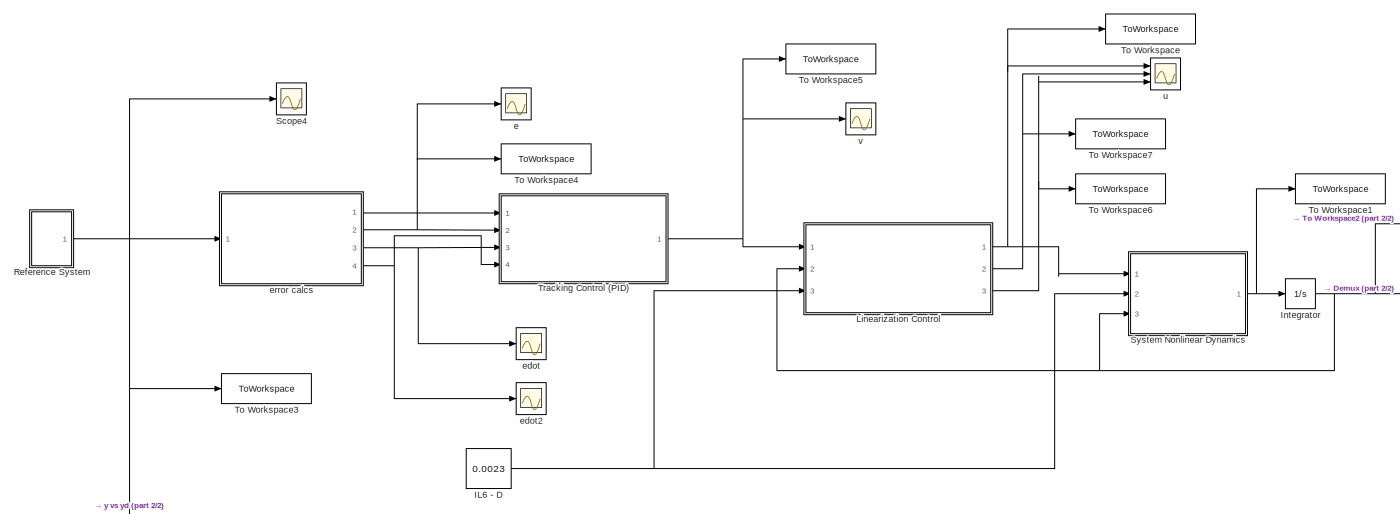
[diagram: root canvas - part 1/2, most of the canvas]
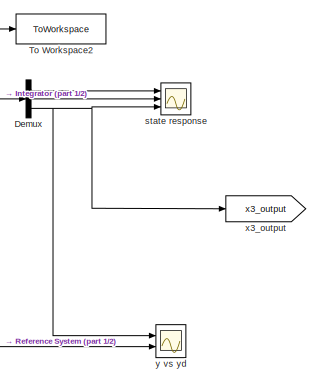
[diagram: root canvas - part 2/2, bottom right region]
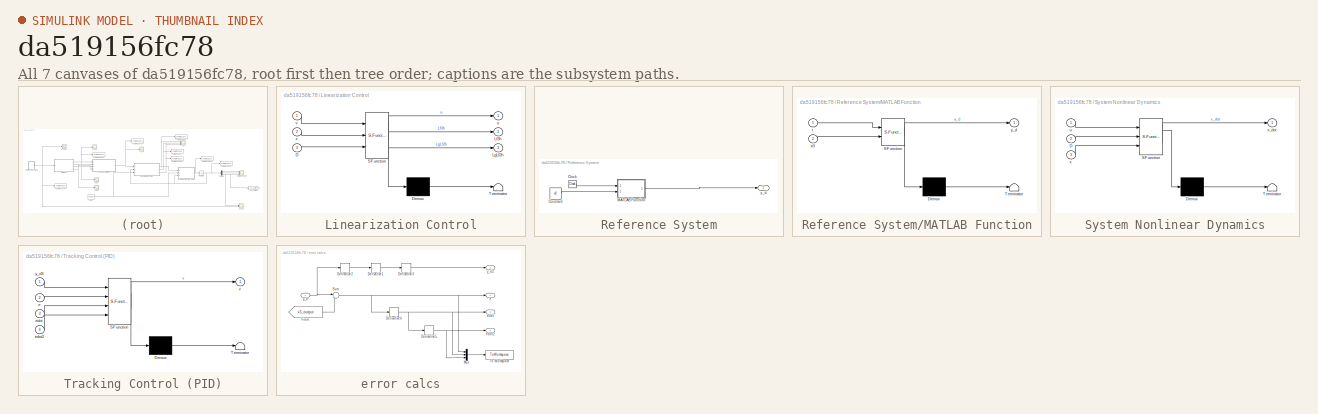
[diagram: thumbnail index - all 7 canvases of the model, root first then tree order]
MODEL slx_da519156fc78
KIND model
CONFIG AbsTol = auto
CONFIG EnableMultiTasking = off
CONFIG FixedStep = 1e-7
CONFIG MaxStep = auto
CONFIG MinStep = auto
CONFIG RelTol = 1e-3
CONFIG SampleTimeConstraint = Unconstrained
CONFIG SolverName = ode1
CONFIG StartTime = 0.0
CONFIG StopTime = 0.02
BLOCK [Demux] Demux
  Outputs = 3
  Ports = [1, 3]
BLOCK [Constant] IL6 - D
  Value = 0.0023
BLOCK [Integrator] Integrator
  InitialCondition = x0
  Ports = [1, 1]
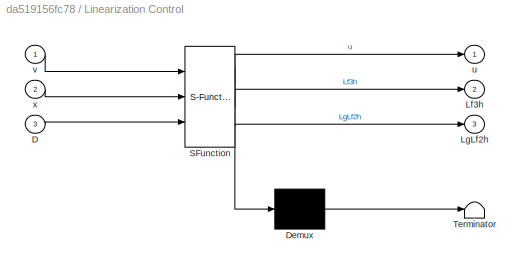
BLOCK [SubSystem] Linearization Control
  ErrorFcn = Stateflow.Translate.translate
  PermitHierarchicalResolution = ExplicitOnly
  Ports = [3, 3]
  RequestExecContextInheritance = off
  SFBlockType = MATLAB Function
  TreatAsAtomicUnit = on
BLOCK [Demux] Linearization Control/ Demux 
  Outputs = 1
  Ports = [1, 1]
BLOCK [S-Function] Linearization Control/ SFunction 
  EnableBusSupport = on
  FunctionName = sf_sfun
  PortCounts = [3 4]
  Ports = [3, 4]
  SFcnIsStateOwnerBlock = off
  SFunctionDeploymentMode = off
  Tag = Stateflow S-Function 1
BLOCK [Terminator] Linearization Control/ Terminator 
BLOCK [Inport] Linearization Control/D
  Port = 3
BLOCK [Outport] Linearization Control/Lf3h
  Port = 2
BLOCK [Outport] Linearization Control/LgLf2h
  Port = 3
BLOCK [Outport] Linearization Control/u
BLOCK [Inport] Linearization Control/v
BLOCK [Inport] Linearization Control/x
  Port = 2
BLOCK [SubSystem] Reference System
  Ports = [0, 1]
  RequestExecContextInheritance = off
BLOCK [Clock] Reference System/Clock
  DisplayTime = on
BLOCK [Constant] Reference System/Constant
  Value = x0
BLOCK [SubSystem] Reference System/MATLAB Function
  ErrorFcn = Stateflow.Translate.translate
  PermitHierarchicalResolution = ExplicitOnly
  Ports = [2, 1]
  RequestExecContextInheritance = off
  SFBlockType = MATLAB Function
  TreatAsAtomicUnit = on
BLOCK [Demux] Reference System/MATLAB Function/ Demux 
  Outputs = 1
  Ports = [1, 1]
BLOCK [S-Function] Reference System/MATLAB Function/ SFunction 
  EnableBusSupport = on
  FunctionName = sf_sfun
  PortCounts = [2 2]
  Ports = [2, 2]
  SFcnIsStateOwnerBlock = off
  SFunctionDeploymentMode = off
  Tag = Stateflow S-Function 11
BLOCK [Terminator] Reference System/MATLAB Function/ Terminator 
BLOCK [Inport] Reference System/MATLAB Function/t
BLOCK [Inport] Reference System/MATLAB Function/x0
  Port = 2
BLOCK [Outport] Reference System/MATLAB Function/y_d
BLOCK [Outport] Reference System/y_d
BLOCK [Scope] Scope4
  Floating = off
  NumInputPorts = 1
  Ports = [1]
  ScopeSpecificationString = Simulink.scopes.TimeScopeBlockCfg('CurrentConfiguration', extmgr.ConfigurationSet(extmgr.Configuration('Core','General UI',true),extmgr.Configuration('Core','Source UI',true),extmgr.Configuration('Sources','WiredSimulink',true,'DataLoggingVariableName','ScopeData4'),extmgr.Configuration('Visuals','Time Domain',true,'InputProcessing','FrameProcessing','SerializedDisplays',{struct('MinYLimReal','50....<+1501ch>
BLOCK [SubSystem] System Nonlinear Dynamics
  ErrorFcn = Stateflow.Translate.translate
  PermitHierarchicalResolution = ExplicitOnly
  Ports = [3, 1]
  RequestExecContextInheritance = off
  SFBlockType = MATLAB Function
  TreatAsAtomicUnit = on
BLOCK [Demux] System Nonlinear Dynamics/ Demux 
  Outputs = 1
  Ports = [1, 1]
BLOCK [S-Function] System Nonlinear Dynamics/ SFunction 
  EnableBusSupport = on
  FunctionName = sf_sfun
  PortCounts = [3 2]
  Ports = [3, 2]
  SFcnIsStateOwnerBlock = off
  SFunctionDeploymentMode = off
  Tag = Stateflow S-Function 4
BLOCK [Terminator] System Nonlinear Dynamics/ Terminator 
BLOCK [Inport] System Nonlinear Dynamics/D
  Port = 2
BLOCK [Inport] System Nonlinear Dynamics/u
BLOCK [Inport] System Nonlinear Dynamics/x
  Port = 3
BLOCK [Outport] System Nonlinear Dynamics/x_dot
BLOCK [ToWorkspace] To Workspace
  FixptAsFi = on
  MaxDataPoints = inf
  Ports = [1]
  SampleTime = -1
  SaveFormat = Timeseries
  VariableName = u
BLOCK [ToWorkspace] To Workspace1
  FixptAsFi = on
  MaxDataPoints = inf
  Ports = [1]
  SampleTime = -1
  SaveFormat = Timeseries
  VariableName = xdot
BLOCK [ToWorkspace] To Workspace2
  FixptAsFi = on
  MaxDataPoints = inf
  Ports = [1]
  SampleTime = -1
  SaveFormat = Timeseries
  VariableName = x
BLOCK [ToWorkspace] To Workspace3
  FixptAsFi = on
  MaxDataPoints = inf
  Ports = [1]
  SampleTime = -1
  SaveFormat = Timeseries
  VariableName = yd
BLOCK [ToWorkspace] To Workspace4
  FixptAsFi = on
  MaxDataPoints = inf
  Ports = [1]
  SampleTime = -1
  SaveFormat = Timeseries
  VariableName = e
BLOCK [ToWorkspace] To Workspace5
  FixptAsFi = on
  MaxDataPoints = inf
  Ports = [1]
  SampleTime = -1
  SaveFormat = Timeseries
  VariableName = v
BLOCK [ToWorkspace] To Workspace6
  FixptAsFi = on
  MaxDataPoints = inf
  Ports = [1]
  SampleTime = -1
  SaveFormat = Timeseries
  VariableName = LgLf2h
BLOCK [ToWorkspace] To Workspace7
  FixptAsFi = on
  MaxDataPoints = inf
  Ports = [1]
  SampleTime = -1
  SaveFormat = Timeseries
  VariableName = Lf3h
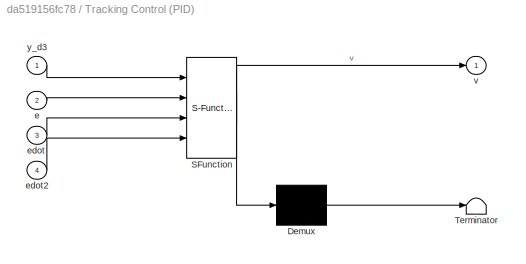
BLOCK [SubSystem] Tracking Control (PID)
  ErrorFcn = Stateflow.Translate.translate
  PermitHierarchicalResolution = ExplicitOnly
  Ports = [4, 1]
  RequestExecContextInheritance = off
  SFBlockType = MATLAB Function
  TreatAsAtomicUnit = on
BLOCK [Demux] Tracking Control (PID)/ Demux 
  Outputs = 1
  Ports = [1, 1]
BLOCK [S-Function] Tracking Control (PID)/ SFunction 
  EnableBusSupport = on
  FunctionName = sf_sfun
  Parameters = gain
  PortCounts = [4 2]
  Ports = [4, 2]
  SFcnIsStateOwnerBlock = off
  SFunctionDeploymentMode = off
  Tag = Stateflow S-Function 2
BLOCK [Terminator] Tracking Control (PID)/ Terminator 
BLOCK [Inport] Tracking Control (PID)/e
  Port = 2
BLOCK [Inport] Tracking Control (PID)/edot
  Port = 3
BLOCK [Inport] Tracking Control (PID)/edot2
  Port = 4
BLOCK [Outport] Tracking Control (PID)/v
BLOCK [Inport] Tracking Control (PID)/y_d3
BLOCK [Scope] e
  Floating = off
  NumInputPorts = 1
  Ports = [1]
  ScopeSpecificationString = Simulink.scopes.TimeScopeBlockCfg('CurrentConfiguration', extmgr.ConfigurationSet(extmgr.Configuration('Core','General UI',true),extmgr.Configuration('Core','Source UI',true),extmgr.Configuration('Sources','WiredSimulink',true,'DataLoggingVariableName','ScopeData2'),extmgr.Configuration('Visuals','Time Domain',true,'InputProcessing','FrameProcessing','SerializedDisplays',{struct('MinYLimReal','-7....<+1491ch>
BLOCK [Scope] edot
  Floating = off
  NumInputPorts = 1
  Ports = [1]
  ScopeSpecificationString = Simulink.scopes.TimeScopeBlockCfg('CurrentConfiguration', extmgr.ConfigurationSet(extmgr.Configuration('Core','General UI',true),extmgr.Configuration('Core','Source UI',true),extmgr.Configuration('Sources','WiredSimulink',true,'DataLoggingVariableName','ScopeData6'),extmgr.Configuration('Visuals','Time Domain',true,'InputProcessing','FrameProcessing','SerializedDisplays',{struct('MinYLimReal','-11...<+1501ch>
BLOCK [Scope] edot2
  Floating = off
  NumInputPorts = 1
  Ports = [1]
  ScopeSpecificationString = Simulink.scopes.TimeScopeBlockCfg('CurrentConfiguration', extmgr.ConfigurationSet(extmgr.Configuration('Core','General UI',true),extmgr.Configuration('Core','Source UI',true),extmgr.Configuration('Sources','WiredSimulink',true,'DataLoggingVariableName','ScopeData7'),extmgr.Configuration('Visuals','Time Domain',true,'InputProcessing','FrameProcessing','SerializedDisplays',{struct('MinYLimReal','-61...<+1537ch>
BLOCK [SubSystem] error calcs
  Ports = [1, 4]
  RequestExecContextInheritance = off
BLOCK [Derivative] error calcs/Derivative1
  CoefficientInTFapproximation = 0
BLOCK [Derivative] error calcs/Derivative2
  CoefficientInTFapproximation = 0
BLOCK [Derivative] error calcs/Derivative3
  CoefficientInTFapproximation = 0
BLOCK [Derivative] error calcs/Derivative4
  CoefficientInTFapproximation = 0
BLOCK [Derivative] error calcs/Derivative5
  CoefficientInTFapproximation = 0
BLOCK [From] error calcs/From
  GotoTag = x3_output
  TagVisibility = global
BLOCK [Mux] error calcs/Mux
  DisplayOption = bar
  Inputs = 3
  Ports = [3, 1]
BLOCK [Sum] error calcs/Sum
  Inputs = |-+
  Ports = [2, 1]
BLOCK [ToWorkspace] error calcs/To Workspace
  FixptAsFi = on
  MaxDataPoints = inf
  Ports = [1]
  SampleTime = -1
  SaveFormat = Timeseries
  VariableName = error_derivatives
BLOCK [Outport] error calcs/e
  Port = 2
BLOCK [Outport] error calcs/edot
  Port = 3
BLOCK [Outport] error calcs/edot2
  Port = 4
BLOCK [Inport] error calcs/y_d
BLOCK [Outport] error calcs/y_d3
BLOCK [Scope] state response
  Floating = off
  NumInputPorts = 3
  Ports = [3]
  ScopeSpecificationString = Simulink.scopes.TimeScopeBlockCfg('CurrentConfiguration', extmgr.ConfigurationSet(extmgr.Configuration('Core','General UI',true),extmgr.Configuration('Core','Source UI',true),extmgr.Configuration('Sources','WiredSimulink',true),extmgr.Configuration('Visuals','Time Domain',true,'InputProcessing','FrameProcessing','SerializedDisplays',{struct('MinYLimReal','-224922174.95518','MaxYLimReal','202430957...<+3064ch>
BLOCK [Scope] u
  Floating = off
  NumInputPorts = 3
  Ports = [3]
  ScopeSpecificationString = Simulink.scopes.TimeScopeBlockCfg('CurrentConfiguration', extmgr.ConfigurationSet(extmgr.Configuration('Core','General UI',true,'DisplayFullSourceName',true),extmgr.Configuration('Core','Source UI',true),extmgr.Configuration('Sources','WiredSimulink',true,'DataLoggingVariableName','ScopeData5'),extmgr.Configuration('Visuals','Time Domain',true,'InputProcessing','FrameProcessing','SerializedDisplay...<+4219ch>
BLOCK [Scope] v
  Floating = off
  NumInputPorts = 1
  Ports = [1]
  ScopeSpecificationString = Simulink.scopes.TimeScopeBlockCfg('CurrentConfiguration', extmgr.ConfigurationSet(extmgr.Configuration('Core','General UI',true),extmgr.Configuration('Core','Source UI',true),extmgr.Configuration('Sources','WiredSimulink',true,'DataLoggingVariableName','ScopeData1'),extmgr.Configuration('Visuals','Time Domain',true,'InputProcessing','FrameProcessing','SerializedDisplays',{struct('MinYLimReal','-27...<+1564ch>
BLOCK [Goto] x3_output
  GotoTag = x3_output
  TagVisibility = global
BLOCK [Scope] y vs yd
  Floating = off
  NumInputPorts = 2
  Ports = [2]
  ScopeSpecificationString = Simulink.scopes.TimeScopeBlockCfg('CurrentConfiguration', extmgr.ConfigurationSet(extmgr.Configuration('Core','General UI',true),extmgr.Configuration('Core','Source UI',true),extmgr.Configuration('Sources','WiredSimulink',true,'DataLoggingVariableName','ScopeData3'),extmgr.Configuration('Visuals','Time Domain',true,'InputProcessing','FrameProcessing','SerializedDisplays',{struct('MinYLimReal','48....<+1511ch>
LINE Demux:1 -> state response:1
LINE Demux:2 -> state response:2
NET Demux:3 -> state response:3, x3_output:1, y vs yd:1
NET IL6 - D:1 -> Linearization Control:3, System Nonlinear Dynamics:2
NET Integrator:1 -> Demux:1, Linearization Control:2, System Nonlinear Dynamics:3, To Workspace2:1
NET Linearization Control:1 -> System Nonlinear Dynamics:1, To Workspace:1, u:1
NET Linearization Control:2 -> To Workspace7:1, u:2
NET Linearization Control:3 -> To Workspace6:1, u:3
LINE Reference System/Clock:1 -> Reference System/MATLAB Function:1
LINE Reference System/Constant:1 -> Reference System/MATLAB Function:2
LINE Reference System/MATLAB Function:1 -> Reference System/y_d:1
NET Reference System:1 -> Scope4:1, To Workspace3:1, error calcs:1, y vs yd:2
NET System Nonlinear Dynamics:1 -> Integrator:1, To Workspace1:1
NET Tracking Control (PID):1 -> Linearization Control:1, To Workspace5:1, v:1
LINE error calcs/Derivative1:1 -> error calcs/Derivative3:1
LINE error calcs/Derivative2:1 -> error calcs/Derivative1:1
LINE error calcs/Derivative3:1 -> error calcs/y_d3:1
NET error calcs/Derivative4:1 -> error calcs/Derivative5:1, error calcs/Mux:2, error calcs/edot:1
NET error calcs/Derivative5:1 -> error calcs/Mux:3, error calcs/edot2:1
LINE error calcs/From:1 -> error calcs/Sum:2
LINE error calcs/Mux:1 -> error calcs/To Workspace:1
NET error calcs/Sum:1 -> error calcs/Derivative4:1, error calcs/Mux:1, error calcs/e:1
NET error calcs/y_d:1 -> error calcs/Derivative2:1, error calcs/Sum:1
LINE error calcs:1 -> Tracking Control (PID):1
NET error calcs:2 -> To Workspace4:1, Tracking Control (PID):2, e:1
NET error calcs:3 -> Tracking Control (PID):3, edot:1
NET error calcs:4 -> Tracking Control (PID):4, edot2:1
note: NET lines group one-source signal fan-out (src -> all destinations, sorted); 1:1 wires keep LINE
CHART Linearization Control states=1 transitions=1
  STATE_LABEL 'eML_blk_kernel()'
  STATE_LABEL 'SCRIPT:\nfunction [u, Lf3h, LgLf2h] = LinearizationControl(v, x, D)\n% this function linearizes the nonlinear dynamics \n\nz1 = 0.8;  % 1/ nM min      -- activation/upregulation of Xa_Va by Fbn \ng1 = 10;   % 1/min      -- upregulation of Xa_Va by IL6\na1 = 1;    % 1/nM min   -- downregulation by APC input and Xa_Va \nd1 = 0.12; % 1/min      -- natural degradation of Xa_Va -- based on HM for prothrombina...<+1812ch>'
CHART Tracking Control (PID) states=1 transitions=1
  STATE_LABEL 'eML_blk_kernel()'
  STATE_LABEL "SCRIPT:\nfunction v = TrackingControl(y_d3, e, edot, edot2, gain)\n% v = yd''' - k3*e'' - k2*e' - k1*e;  % General format of reference\n% tracking controller \nv = y_d3 - gain.k3*edot2 - gain.k2*edot - gain.k1*e;\n% v = 0; % use when want to turn off reference tracking control \n"
CHART System Nonlinear Dynamics states=1 transitions=1
  STATE_LABEL 'eML_blk_kernel()'
  STATE_LABEL 'SCRIPT:\nfunction x_dot = NonlinearDynamics(u,D,x)\nz1 = 0.8;  % 1/ nM min      -- activation/upregulation of Xa_Va by Fbn \ng1 = 10;   % 1/min      -- upregulation of Xa_Va by IL6\na1 = 1;    % 1/nM min   -- downregulation by APC input and Xa_Va \nd1 = 0.12; % 1/min      -- natural degradation of Xa_Va -- based on HM for prothrombinase \nK2 = 0.034 * log(2)/4; % equals 0.0059;  % nM/min     -- natural ...<+789ch>'
CHART Reference System/MATLAB Function states=1 transitions=1
  STATE_LABEL 'eML_blk_kernel()'
  STATE_LABEL 'SCRIPT:\nfunction y_d = fcn(t, x0)\ny_d = ref_signal(t, x0);'
CHART  states=0 transitions=0
CHART  states=0 transitions=0
CHART  states=0 transitions=0
CHART  states=0 transitions=0
